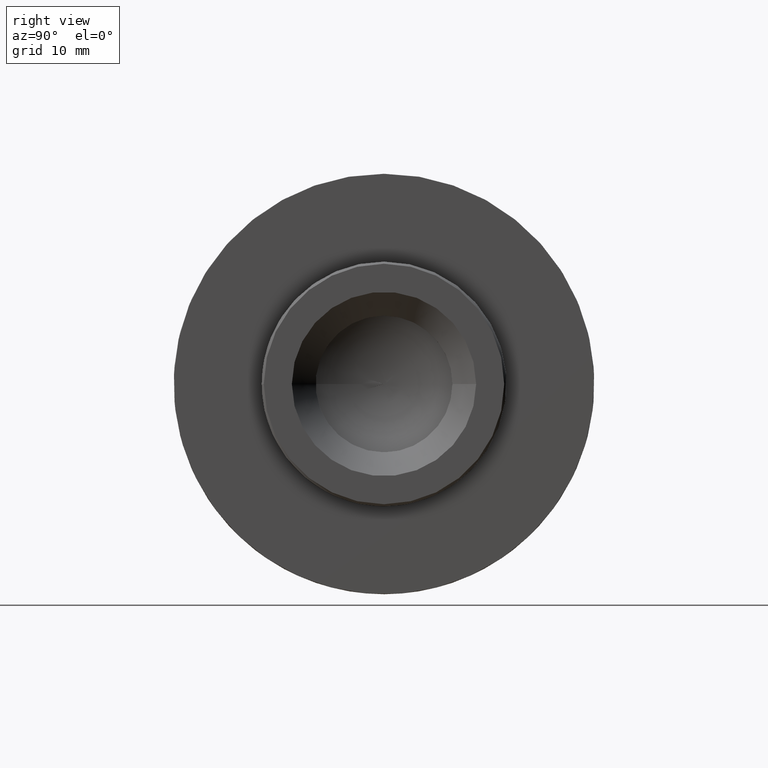
[diagram: clean part render]
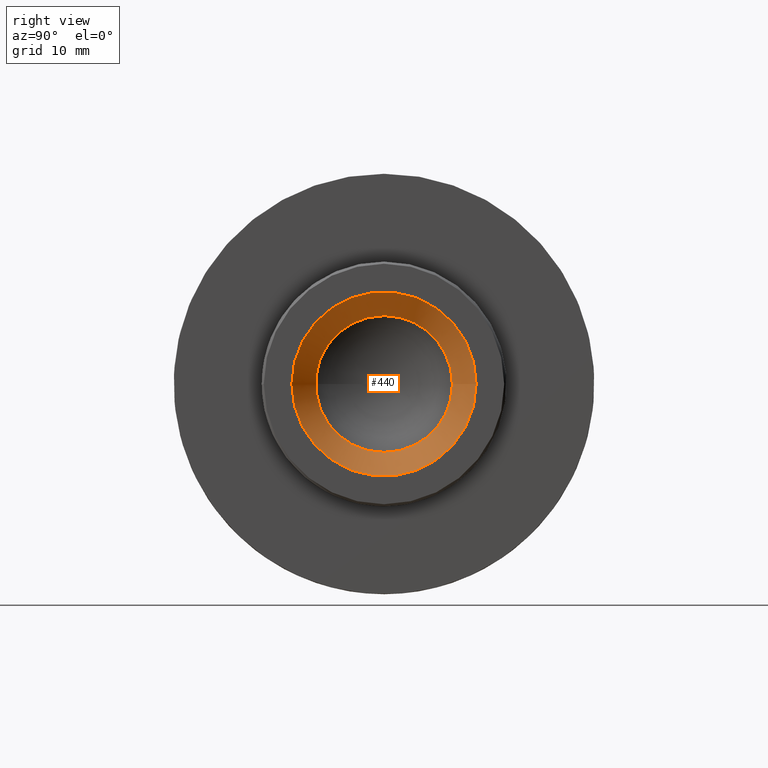
[diagram: same view with one face highlighted and labeled with its STEP entity id]
A machine part, right view. The second image highlights one B-rep face of the part: STEP entity #440.
In plain terms, the highlighted conical surface has half-angle 45 deg.
Its self-contained STEP definition (entity closure, byte-faithful):
#38 = AXIS2_PLACEMENT_3D ( 'NONE', #488, #539, #185 ) ;
#64 = CARTESIAN_POINT ( 'NONE',  ( 7930.038068922354796, -204.0133481055009383, 0.000000000000000000 ) ) ;
#72 = AXIS2_PLACEMENT_3D ( 'NONE', #498, #548, #106 ) ;
#104 = AXIS2_PLACEMENT_3D ( 'NONE', #64, #291, #613 ) ;
#106 = DIRECTION ( 'NONE',  ( 0.000000000000000000, 0.000000000000000000, -1.000000000000000000 ) ) ;
#132 = CARTESIAN_POINT ( 'NONE',  ( 7926.738068922353705, -204.0133481055009383, -9.499999999998204103 ) ) ;
#185 = DIRECTION ( 'NONE',  ( -6.938893903915426220E-14, 1.000000000000000000, 0.000000000000000000 ) ) ;
#188 = FACE_BOUND ( 'NONE', #303, .T. ) ;
#291 = DIRECTION ( 'NONE',  ( -1.000000000000000000, -3.469446951957716897E-14, 0.000000000000000000 ) ) ;
#303 = EDGE_LOOP ( 'NONE', ( #515 ) ) ;
#377 = VERTEX_POINT ( 'NONE', #619 ) ;
#382 = CIRCLE ( 'NONE', #104, 12.79999999998487858 ) ;
#440 = ADVANCED_FACE ( 'NONE', ( #188, #587 ), #446, .F. ) ;
#446 = CONICAL_SURFACE ( 'NONE', #38, 12.79999999998487858, 0.7853981633952471508 ) ;
#477 = CIRCLE ( 'NONE', #72, 9.499999999998204103 ) ;
#488 = CARTESIAN_POINT ( 'NONE',  ( 7930.038068922354796, -204.0133481055009383, 0.000000000000000000 ) ) ;
#498 = CARTESIAN_POINT ( 'NONE',  ( 7926.738068922353705, -204.0133481055009383, 0.000000000000000000 ) ) ;
#515 = ORIENTED_EDGE ( 'NONE', *, *, #643, .F. ) ;
#524 = EDGE_CURVE ( 'NONE', #377, #377, #382, .T. ) ;
#539 = DIRECTION ( 'NONE',  ( 1.000000000000000000, 3.469446951957716897E-14, -0.000000000000000000 ) ) ;
#548 = DIRECTION ( 'NONE',  ( 1.000000000000000000, 0.000000000000000000, 0.000000000000000000 ) ) ;
#570 = EDGE_LOOP ( 'NONE', ( #610 ) ) ;
#579 = VERTEX_POINT ( 'NONE', #132 ) ;
#587 = FACE_OUTER_BOUND ( 'NONE', #570, .T. ) ;
#610 = ORIENTED_EDGE ( 'NONE', *, *, #524, .F. ) ;
#613 = DIRECTION ( 'NONE',  ( -6.938893903915426220E-14, 1.000000000000000000, 0.000000000000000000 ) ) ;
#619 = CARTESIAN_POINT ( 'NONE',  ( 7930.038068922353887, -191.2133481055160757, 0.000000000000000000 ) ) ;
#643 = EDGE_CURVE ( 'NONE', #579, #579, #477, .T. ) ;